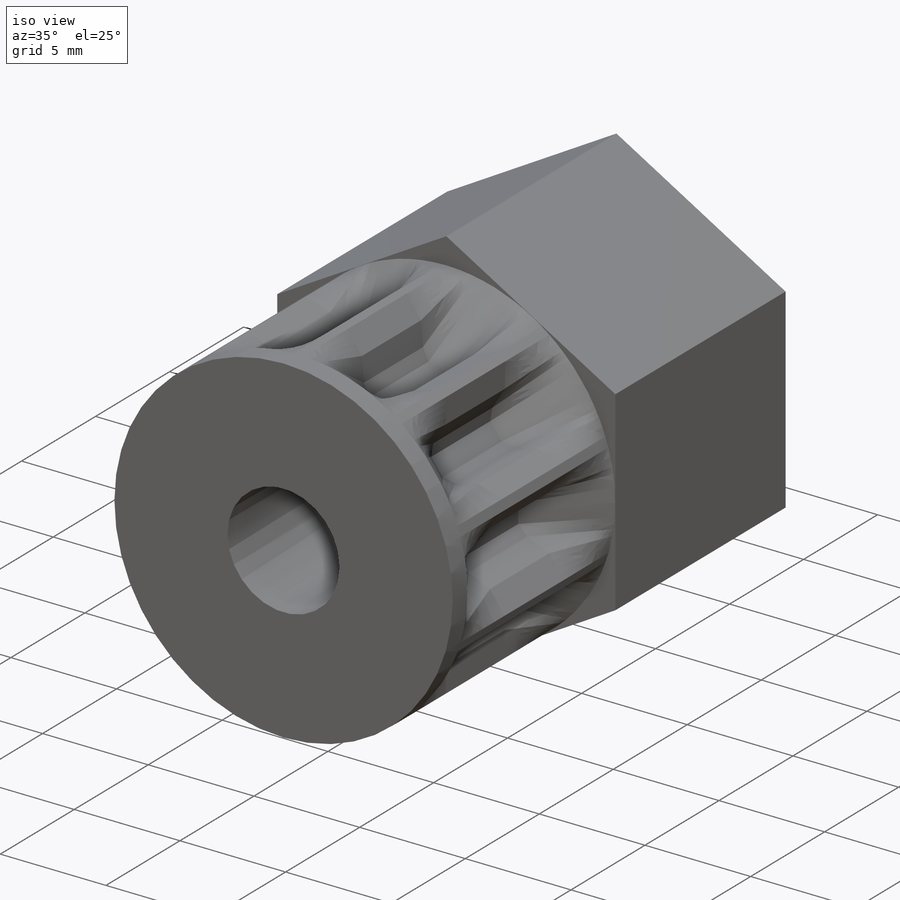
[diagram: iso view]
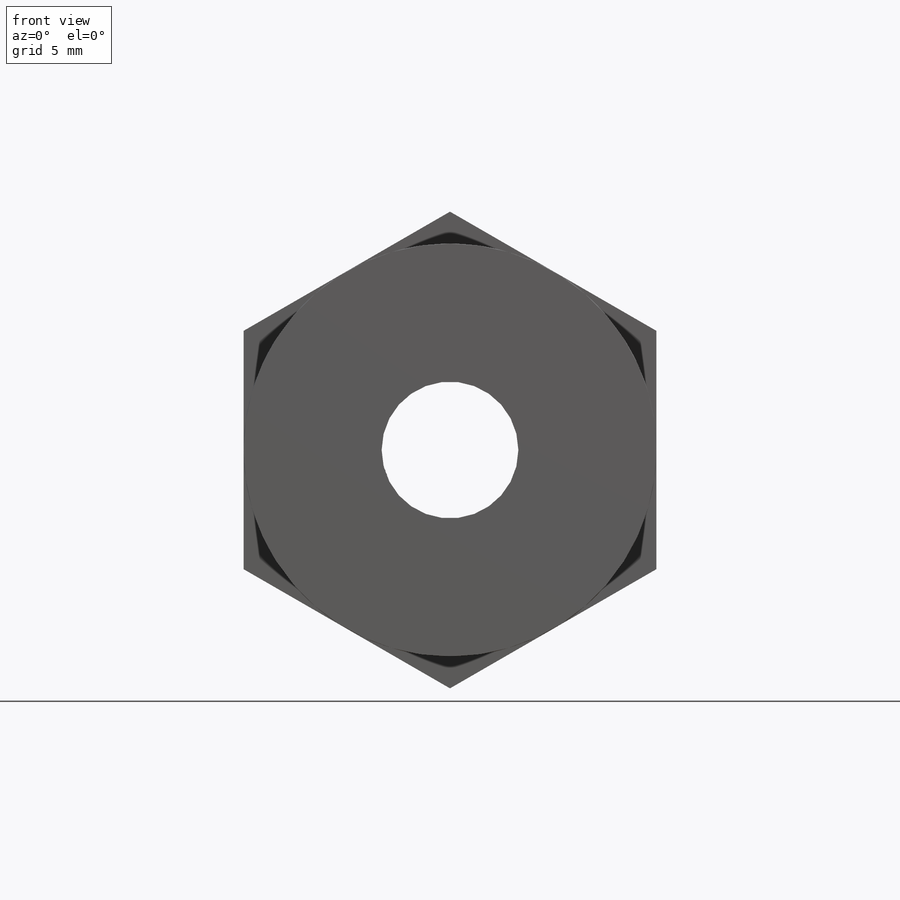
[diagram: front view]
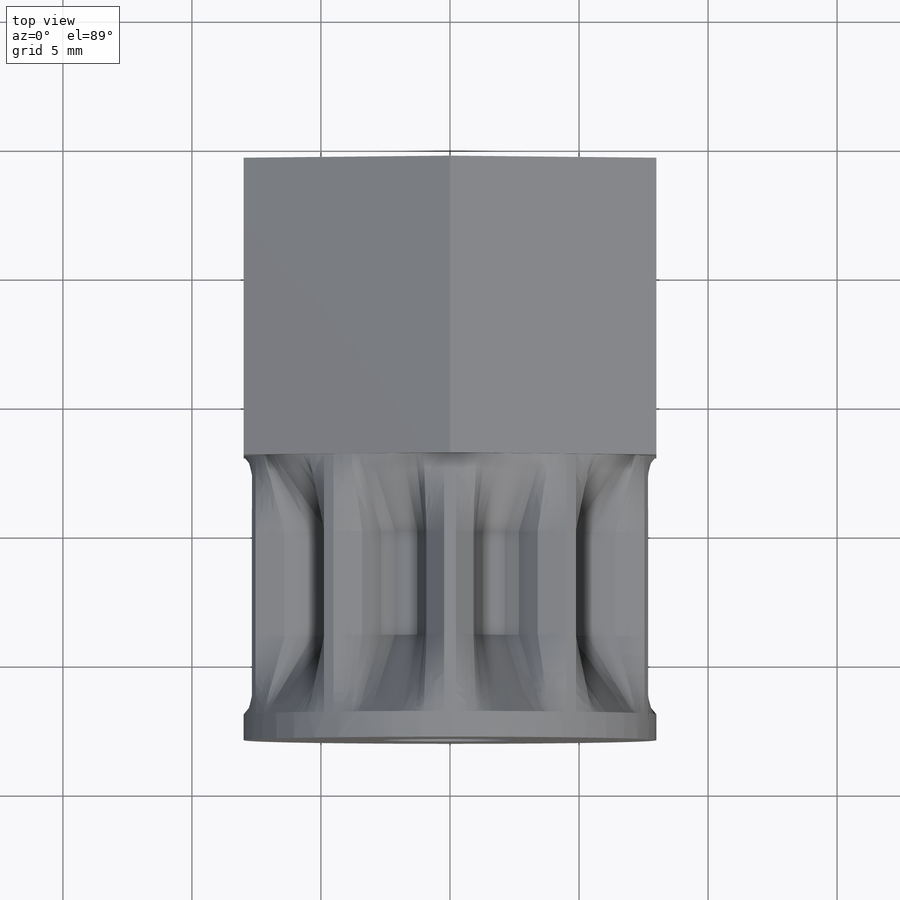
[diagram: top view]
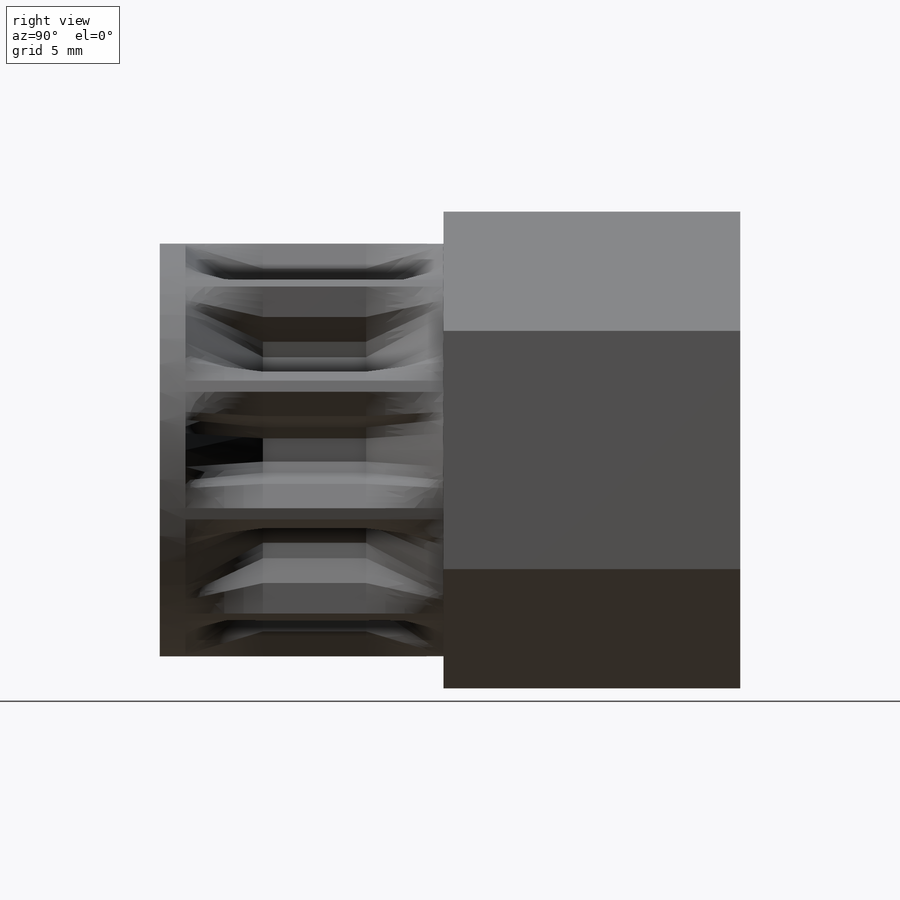
[diagram: right view]
SOLIDWORKS PART (.sldprt)
format: sldprt  version: not decoded by parser v0  size: 930,816 bytes
history: native  units: mm
features: sketch x7, extrude x6, chamfer x6, plane x5, material x1 (+10 scaffold rows collapsed)
feature tree (35):
  scaffold x10  (default folders/planes/origin — collapsed)
  material  "ABS"
  plane  "Спереди"
  plane  "Сверху"
  plane  "Справа"
  sketch  "Эскиз2"  dims[c1.D1=16.0mm c1.D2=11.0mm c1.D3=0.5mm c1.D4=~1.710813mm c2.D4=108.0deg c2.D3=~2.010684mm c3.D3=112.62deg c3.D4=0.7mm]
  extrude  "Бобышка-Вытянуть1"  Depth=4mm
  chamfer  "Фаска3"  Distance=0.6mm Angle=55deg
  extrude  "Фаска4"  Depth=0.6mm
  extrude  "Фаска5"  Depth=0.25mm
  extrude  "Фаска6"  Depth=0.25mm
  plane  "Плоскость1"  Offset=3mm
  plane  "Плоскость2"  Offset=3mm
  sketch  "Эскиз3"  dims[D1=16.0mm]
  extrude  "Бобышка-Вытянуть2"  Depth=1mm
  sketch  "Эскиз4"  dims[D1=16.0mm]
  chamfer  "Бобышка-Вытянуть3"  Distance=11.5mm
  sketch  "Эскиз8"  dims[D1=15.99mm]
  chamfer  "Бобышка-Вытянуть4"  Distance=0.01mm
  extrude  "По сечениям4"  [1 undecoded]
  sketch  "Эскиз9"  dims[c1.D3=5.1mm c1.D1=6.0mm c1.D2=5.5mm c2.D3=3.2mm]
  chamfer  "Вырез-Вытянуть6"  Distance=10mm
  sketch  "Эскиз10"  dims[D1=3.0mm D2=4.5mm]
  chamfer  "Вырез-Вытянуть7"  Distance=8mm
  sketch  "Эскиз11"  dims[D1=5.3mm]
  chamfer  "Вырез-Вытянуть8"  [1 undecoded]
decode coverage: 17 of 19 modeling features carry decoded parameters
note: ~ marks probable driven/reference dimensions
note: 2 parameter values undecoded
note: suppression state not decoded; provenance and decode notes live in map.json
